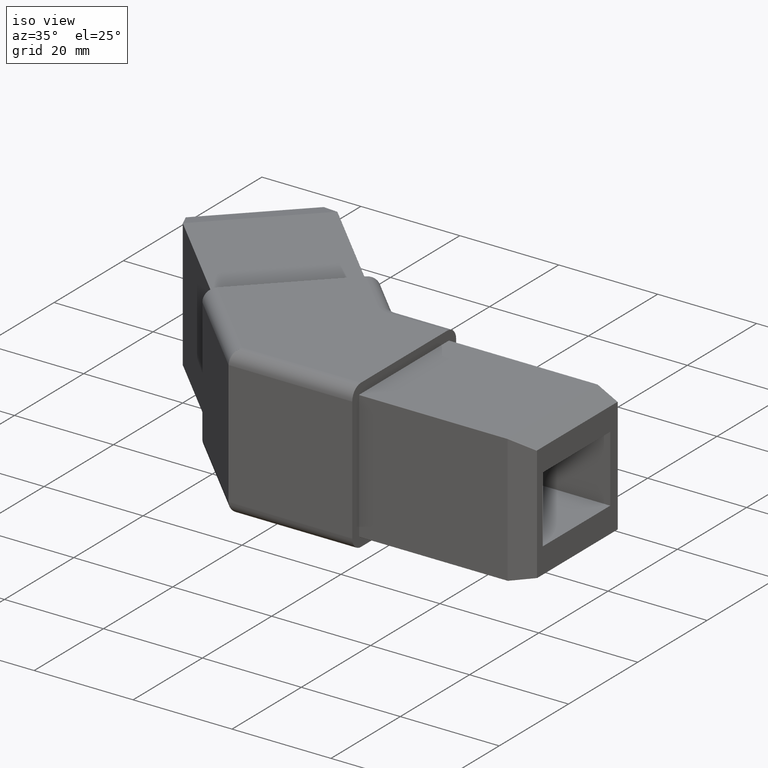
[diagram: clean part render]
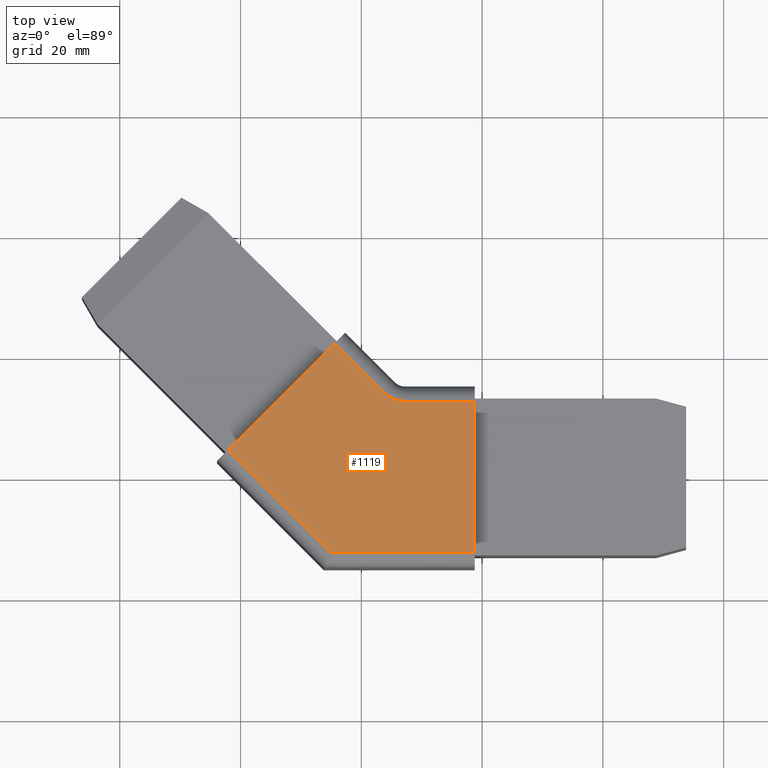
[diagram: tour spotlight — one face highlighted and labeled with its STEP entity id]
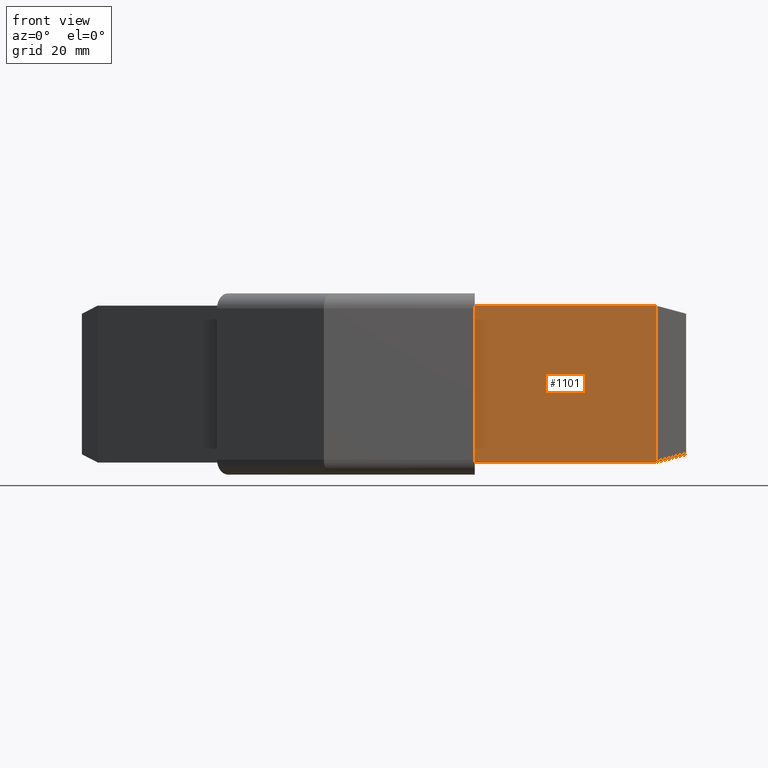
[diagram: tour spotlight — one face highlighted and labeled with its STEP entity id]
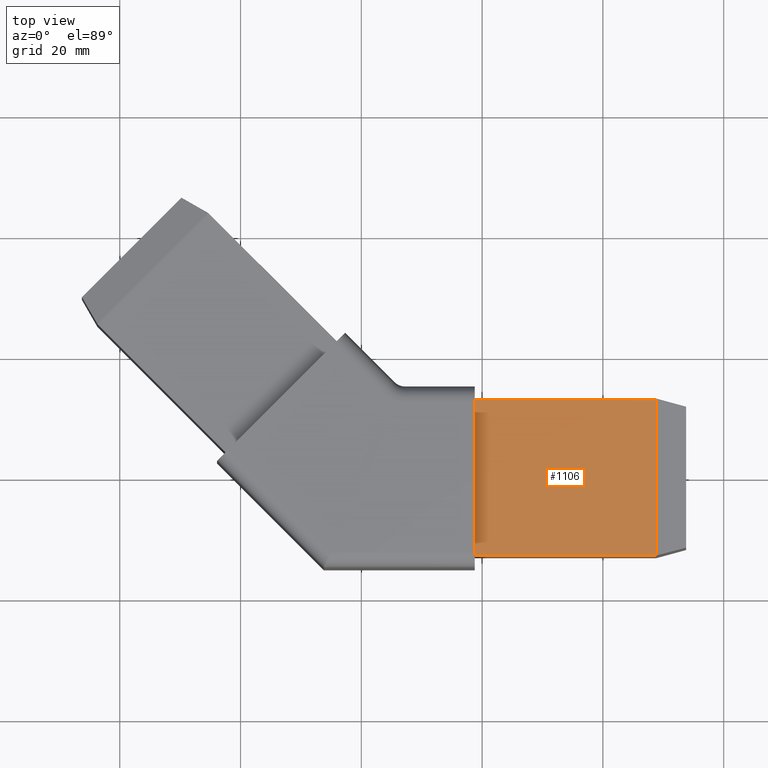
[diagram: tour spotlight — one face highlighted and labeled with its STEP entity id]
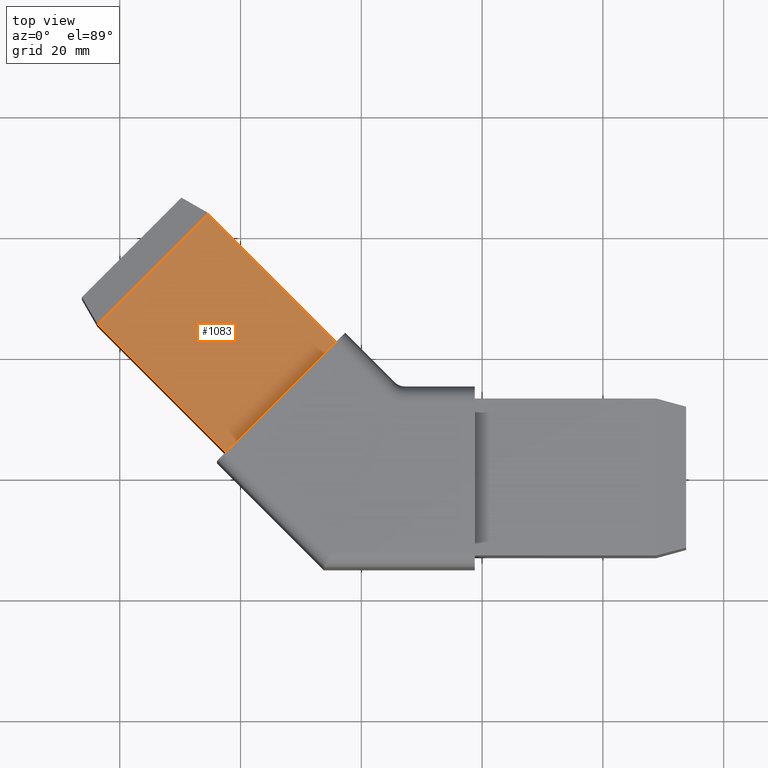
[diagram: tour spotlight — one face highlighted and labeled with its STEP entity id]
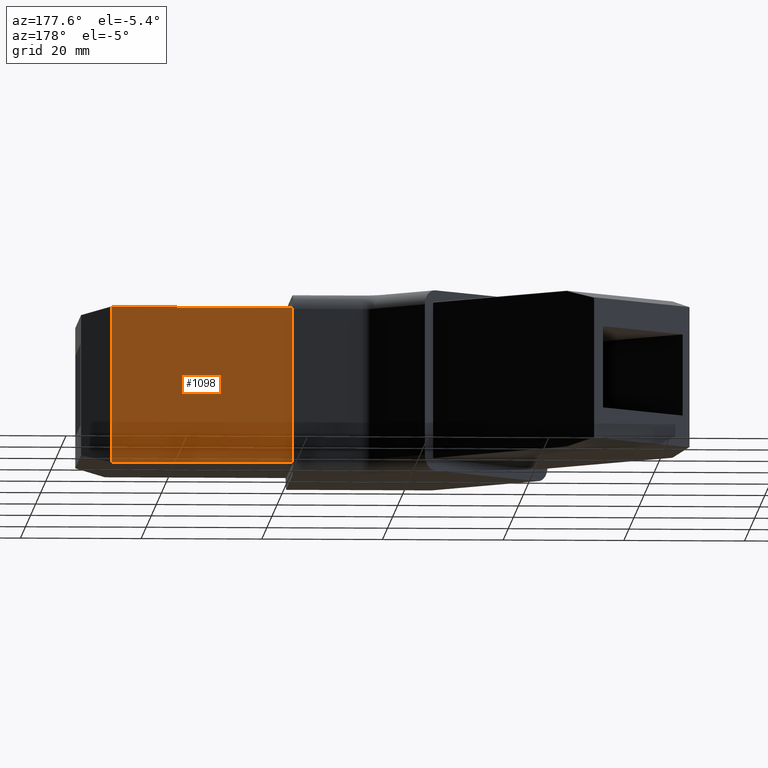
[diagram: tour spotlight — one face highlighted and labeled with its STEP entity id]
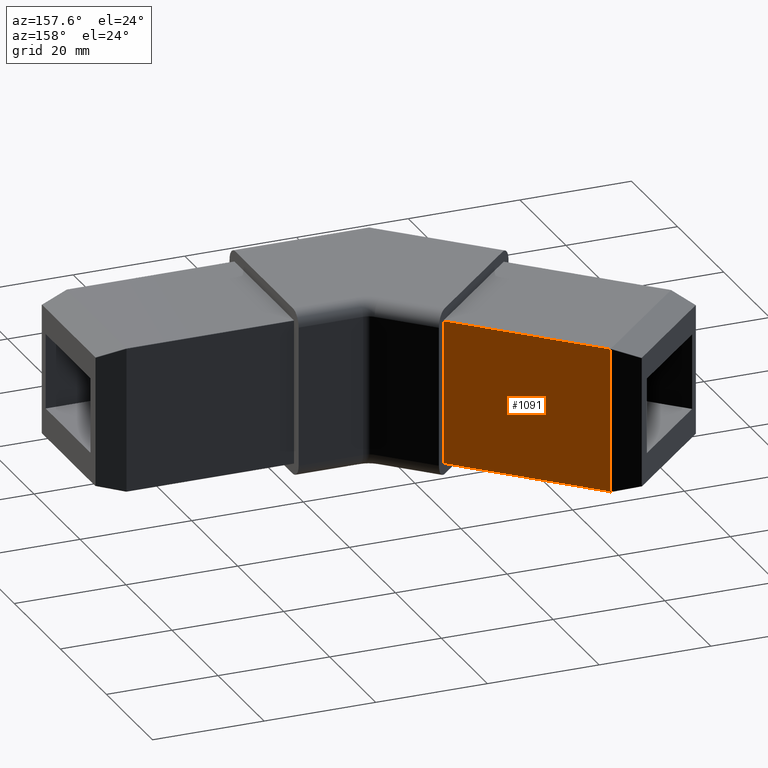
[diagram: tour spotlight — one face highlighted and labeled with its STEP entity id]
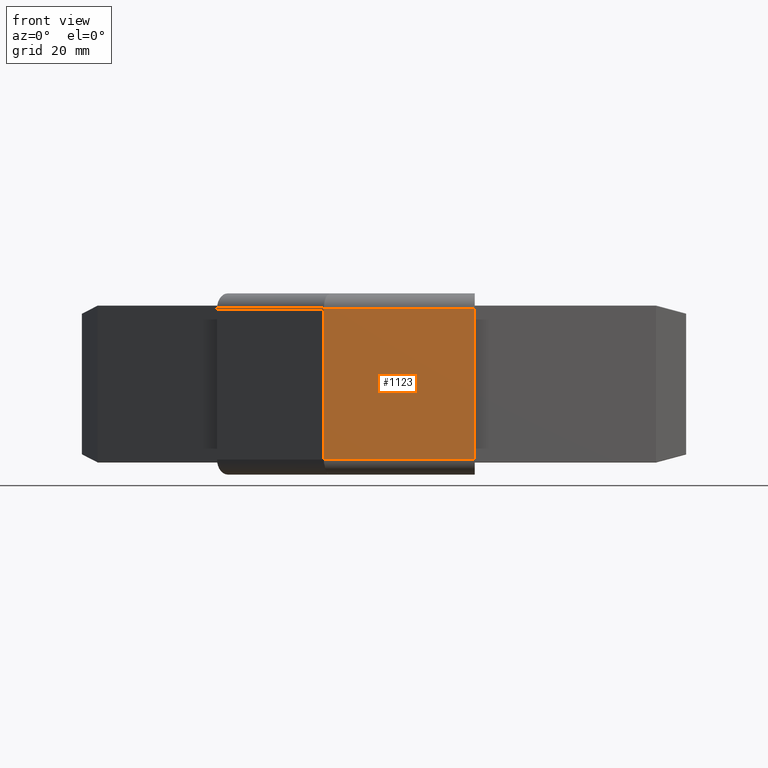
[diagram: tour spotlight — one face highlighted and labeled with its STEP entity id]
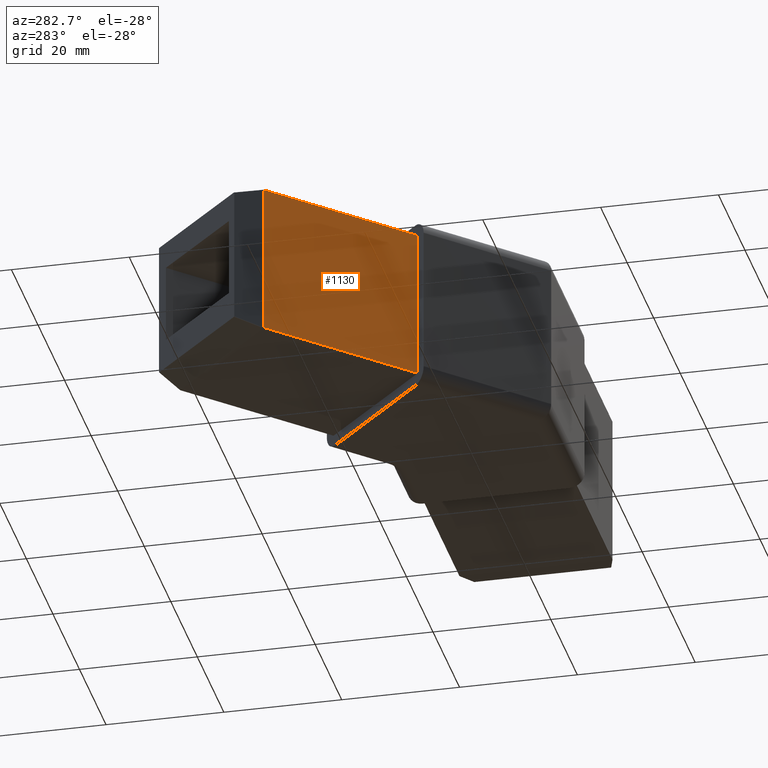
[diagram: tour spotlight — one face highlighted and labeled with its STEP entity id]
A machine part: a face-by-face anatomy tour. The part has 62 B-rep faces; the first image is the clean iso view, then the 8 largest visible faces are spotlighted one at a time (largest first), each with its STEP entity span.

Face 1 — top view, entity #1119. In plain terms, the highlighted planar face has unit normal (0, 0, 1).
Definition (entity closure, byte-faithful):
#39=CIRCLE('',#1244,5.);
#157=FACE_OUTER_BOUND('',#221,.T.);
#221=EDGE_LOOP('',(#949,#950,#951,#952,#953,#954,#955));
#315=LINE('',#1883,#417);
#318=LINE('',#1890,#420);
#322=LINE('',#1901,#424);
#323=LINE('',#1903,#425);
#324=LINE('',#1905,#426);
#325=LINE('',#1906,#427);
#417=VECTOR('',#1541,10.);
#420=VECTOR('',#1548,10.);
#424=VECTOR('',#1560,10.);
#425=VECTOR('',#1561,10.);
#426=VECTOR('',#1562,10.);
#427=VECTOR('',#1563,10.);
#526=VERTEX_POINT('',#1869);
#528=VERTEX_POINT('',#1873);
#530=VERTEX_POINT('',#1881);
#531=VERTEX_POINT('',#1886);
#535=VERTEX_POINT('',#1900);
#536=VERTEX_POINT('',#1902);
#537=VERTEX_POINT('',#1904);
#671=EDGE_CURVE('',#528,#526,#39,.T.);
#675=EDGE_CURVE('',#530,#528,#315,.T.);
#679=EDGE_CURVE('',#526,#531,#318,.T.);
#684=EDGE_CURVE('',#530,#535,#322,.T.);
#685=EDGE_CURVE('',#536,#535,#323,.T.);
#686=EDGE_CURVE('',#537,#536,#324,.T.);
#687=EDGE_CURVE('',#537,#531,#325,.T.);
#949=ORIENTED_EDGE('',*,*,#679,.F.);
#950=ORIENTED_EDGE('',*,*,#671,.F.);
#951=ORIENTED_EDGE('',*,*,#675,.F.);
#952=ORIENTED_EDGE('',*,*,#684,.T.);
#953=ORIENTED_EDGE('',*,*,#685,.F.);
#954=ORIENTED_EDGE('',*,*,#686,.F.);
#955=ORIENTED_EDGE('',*,*,#687,.T.);
#1064=PLANE('',#1253);
#1119=ADVANCED_FACE('',(#157),#1064,.T.);
#1244=AXIS2_PLACEMENT_3D('',#1875,#1531,#1532);
#1253=AXIS2_PLACEMENT_3D('',#1899,#1558,#1559);
#1531=DIRECTION('center_axis',(0.,0.,1.));
#1532=DIRECTION('ref_axis',(-0.38268343236509,-0.923879532511287,0.));
#1541=DIRECTION('',(0.707106781186547,-0.707106781186548,0.));
#1548=DIRECTION('',(1.,0.,0.));
#1558=DIRECTION('center_axis',(0.,0.,1.));
#1559=DIRECTION('ref_axis',(1.,0.,0.));
#1560=DIRECTION('',(-0.707106781186548,-0.707106781186547,0.));
#1561=DIRECTION('',(-0.707106781186547,0.707106781186548,0.));
#1562=DIRECTION('',(-1.,0.,0.));
#1563=DIRECTION('',(0.,1.,0.));
#1869=CARTESIAN_POINT('',(7.24873734152918,12.5,30.));
#1873=CARTESIAN_POINT('',(3.71320343559644,13.9644660940673,30.));
#1875=CARTESIAN_POINT('Origin',(7.24873734152918,17.5,30.));
#1881=CARTESIAN_POINT('',(-4.44558033331981,22.1232498629835,30.));
#1883=CARTESIAN_POINT('',(6.31377790588268,11.363891623781,30.));
#1886=CARTESIAN_POINT('',(18.787,12.5,30.));
#1890=CARTESIAN_POINT('',(9.85786793789091,12.5,30.));
#1899=CARTESIAN_POINT('Origin',(0.928735875781815,2.24216674717492,30.));
#1900=CARTESIAN_POINT('',(-22.1232498629835,4.44558033331983,30.));
#1901=CARTESIAN_POINT('',(-23.8910168159499,2.67781338035347,30.));
#1902=CARTESIAN_POINT('',(-5.17766952966371,-12.5,30.));
#1903=CARTESIAN_POINT('',(-15.809400031756,-1.86826949790773,30.));
#1904=CARTESIAN_POINT('',(18.787,-12.5,30.));
#1905=CARTESIAN_POINT('',(-2.62152310178866,-12.5,30.));
#1906=CARTESIAN_POINT('',(18.787,15.,30.));

Face 2 — front view, entity #1101. In plain terms, the highlighted planar face has unit normal (0, -1, 0).
Definition (entity closure, byte-faithful):
#139=FACE_OUTER_BOUND('',#203,.T.);
#203=EDGE_LOOP('',(#865,#866,#867,#868));
#296=LINE('',#1810,#398);
#299=LINE('',#1816,#401);
#300=LINE('',#1818,#402);
#301=LINE('',#1819,#403);
#398=VECTOR('',#1456,10.);
#401=VECTOR('',#1463,10.);
#402=VECTOR('',#1464,10.);
#403=VECTOR('',#1465,10.);
#504=VERTEX_POINT('',#1799);
#509=VERTEX_POINT('',#1808);
#510=VERTEX_POINT('',#1815);
#511=VERTEX_POINT('',#1817);
#639=EDGE_CURVE('',#509,#504,#296,.T.);
#642=EDGE_CURVE('',#510,#509,#299,.T.);
#643=EDGE_CURVE('',#511,#510,#300,.T.);
#644=EDGE_CURVE('',#504,#511,#301,.T.);
#865=ORIENTED_EDGE('',*,*,#639,.F.);
#866=ORIENTED_EDGE('',*,*,#642,.F.);
#867=ORIENTED_EDGE('',*,*,#643,.F.);
#868=ORIENTED_EDGE('',*,*,#644,.F.);
#1057=PLANE('',#1216);
#1101=ADVANCED_FACE('',(#139),#1057,.T.);
#1216=AXIS2_PLACEMENT_3D('',#1814,#1461,#1462);
#1456=DIRECTION('',(-1.,0.,0.));
#1461=DIRECTION('center_axis',(0.,-1.,0.));
#1462=DIRECTION('ref_axis',(0.,0.,-1.));
#1463=DIRECTION('',(0.,0.,-1.));
#1464=DIRECTION('',(1.,0.,0.));
#1465=DIRECTION('',(0.,0.,1.));
#1799=CARTESIAN_POINT('',(18.787,-13.,2.1));
#1808=CARTESIAN_POINT('',(48.787,-13.,2.1));
#1810=CARTESIAN_POINT('',(18.787,-13.,2.1));
#1814=CARTESIAN_POINT('Origin',(18.787,-13.,28.));
#1815=CARTESIAN_POINT('',(48.787,-13.,27.9));
#1816=CARTESIAN_POINT('',(48.787,-13.,21.5));
#1817=CARTESIAN_POINT('',(18.787,-13.,27.9));
#1818=CARTESIAN_POINT('',(18.787,-13.,27.9));
#1819=CARTESIAN_POINT('',(18.787,-13.,14.));

Face 3 — top view, entity #1106. In plain terms, the highlighted planar face has unit normal (0, 0, 1).
Definition (entity closure, byte-faithful):
#144=FACE_OUTER_BOUND('',#208,.T.);
#208=EDGE_LOOP('',(#891,#892,#893,#894));
#304=LINE('',#1832,#406);
#305=LINE('',#1836,#407);
#307=LINE('',#1842,#409);
#308=LINE('',#1843,#410);
#406=VECTOR('',#1480,10.);
#407=VECTOR('',#1485,10.);
#409=VECTOR('',#1491,10.);
#410=VECTOR('',#1492,10.);
#514=VERTEX_POINT('',#1829);
#515=VERTEX_POINT('',#1831);
#516=VERTEX_POINT('',#1835);
#518=VERTEX_POINT('',#1841);
#650=EDGE_CURVE('',#514,#515,#304,.T.);
#652=EDGE_CURVE('',#515,#516,#305,.T.);
#655=EDGE_CURVE('',#518,#514,#307,.T.);
#656=EDGE_CURVE('',#516,#518,#308,.T.);
#891=ORIENTED_EDGE('',*,*,#650,.F.);
#892=ORIENTED_EDGE('',*,*,#655,.F.);
#893=ORIENTED_EDGE('',*,*,#656,.F.);
#894=ORIENTED_EDGE('',*,*,#652,.F.);
#1060=PLANE('',#1226);
#1106=ADVANCED_FACE('',(#144),#1060,.T.);
#1226=AXIS2_PLACEMENT_3D('',#1840,#1489,#1490);
#1480=DIRECTION('',(1.,0.,0.));
#1485=DIRECTION('',(0.,-1.,0.));
#1489=DIRECTION('center_axis',(0.,0.,1.));
#1490=DIRECTION('ref_axis',(0.,-1.,0.));
#1491=DIRECTION('',(0.,1.,0.));
#1492=DIRECTION('',(-1.,0.,0.));
#1829=CARTESIAN_POINT('',(18.787,12.9,28.));
#1831=CARTESIAN_POINT('',(48.787,12.9,28.));
#1832=CARTESIAN_POINT('',(18.787,12.9,28.));
#1835=CARTESIAN_POINT('',(48.787,-12.9,28.));
#1836=CARTESIAN_POINT('',(48.787,6.5,28.));
#1840=CARTESIAN_POINT('Origin',(18.787,13.,28.));
#1841=CARTESIAN_POINT('',(18.787,-12.9,28.));
#1842=CARTESIAN_POINT('',(18.787,-0.999999999999999,28.));
#1843=CARTESIAN_POINT('',(18.787,-12.9,28.));

Face 4 — top view, entity #1083. In plain terms, the highlighted planar face has unit normal (-0, -0, 1).
Definition (entity closure, byte-faithful):
#121=FACE_OUTER_BOUND('',#184,.T.);
#184=EDGE_LOOP('',(#769,#770,#771,#772));
#259=LINE('',#1676,#361);
#265=LINE('',#1697,#367);
#267=LINE('',#1703,#369);
#268=LINE('',#1704,#370);
#361=VECTOR('',#1321,10.);
#367=VECTOR('',#1341,10.);
#369=VECTOR('',#1347,10.);
#370=VECTOR('',#1348,10.);
#460=VERTEX_POINT('',#1673);
#461=VERTEX_POINT('',#1675);
#469=VERTEX_POINT('',#1696);
#471=VERTEX_POINT('',#1702);
#572=EDGE_CURVE('',#460,#461,#259,.T.);
#583=EDGE_CURVE('',#461,#469,#265,.T.);
#586=EDGE_CURVE('',#471,#460,#267,.T.);
#587=EDGE_CURVE('',#469,#471,#268,.T.);
#769=ORIENTED_EDGE('',*,*,#572,.F.);
#770=ORIENTED_EDGE('',*,*,#586,.F.);
#771=ORIENTED_EDGE('',*,*,#587,.F.);
#772=ORIENTED_EDGE('',*,*,#583,.F.);
#1049=PLANE('',#1174);
#1083=ADVANCED_FACE('',(#121),#1049,.T.);
#1174=AXIS2_PLACEMENT_3D('',#1701,#1345,#1346);
#1321=DIRECTION('',(-0.707106781186547,0.707106781186548,0.));
#1341=DIRECTION('',(0.707106781186548,0.707106781186547,1.04672830578918E-16));
#1345=DIRECTION('center_axis',(-7.4014868308344E-17,-7.40148683083438E-17,
1.));
#1346=DIRECTION('ref_axis',(0.707106781186548,0.707106781186547,1.04672830578918E-16));
#1347=DIRECTION('',(-0.707106781186548,-0.707106781186547,-1.04672830578918E-16));
#1348=DIRECTION('',(0.707106781186547,-0.707106781186548,0.));
#1673=CARTESIAN_POINT('',(-22.4060925754581,4.16273762084522,28.));
#1675=CARTESIAN_POINT('',(-43.6192960110545,25.3759410564417,28.));
#1676=CARTESIAN_POINT('',(-22.4060925754581,4.16273762084522,28.));
#1696=CARTESIAN_POINT('',(-25.3759410564416,43.6192960110546,28.));
#1697=CARTESIAN_POINT('',(-39.0938126114606,29.9014244560356,28.));
#1701=CARTESIAN_POINT('Origin',(-22.4768032535768,4.09202694272656,28.));
#1702=CARTESIAN_POINT('',(-4.16273762084519,22.4060925754581,28.));
#1703=CARTESIAN_POINT('',(-12.5773083169651,13.9915218793382,28.));
#1704=CARTESIAN_POINT('',(-4.16273762084519,22.4060925754581,28.));

Face 5 — auxiliary view, entity #1098. In plain terms, the highlighted planar face has unit normal (0, 1, 0).
Definition (entity closure, byte-faithful):
#136=FACE_OUTER_BOUND('',#200,.T.);
#200=EDGE_LOOP('',(#851,#852,#853,#854));
#285=LINE('',#1769,#387);
#291=LINE('',#1790,#393);
#293=LINE('',#1796,#395);
#294=LINE('',#1797,#396);
#387=VECTOR('',#1417,10.);
#393=VECTOR('',#1437,10.);
#395=VECTOR('',#1443,10.);
#396=VECTOR('',#1444,10.);
#492=VERTEX_POINT('',#1766);
#493=VERTEX_POINT('',#1768);
#501=VERTEX_POINT('',#1789);
#503=VERTEX_POINT('',#1795);
#618=EDGE_CURVE('',#492,#493,#285,.T.);
#629=EDGE_CURVE('',#493,#501,#291,.T.);
#632=EDGE_CURVE('',#503,#492,#293,.T.);
#633=EDGE_CURVE('',#501,#503,#294,.T.);
#851=ORIENTED_EDGE('',*,*,#618,.F.);
#852=ORIENTED_EDGE('',*,*,#632,.F.);
#853=ORIENTED_EDGE('',*,*,#633,.F.);
#854=ORIENTED_EDGE('',*,*,#629,.F.);
#1056=PLANE('',#1209);
#1098=ADVANCED_FACE('',(#136),#1056,.T.);
#1209=AXIS2_PLACEMENT_3D('',#1794,#1441,#1442);
#1417=DIRECTION('',(1.,0.,0.));
#1437=DIRECTION('',(0.,0.,1.));
#1441=DIRECTION('center_axis',(0.,1.,0.));
#1442=DIRECTION('ref_axis',(0.,0.,1.));
#1443=DIRECTION('',(0.,0.,-1.));
#1444=DIRECTION('',(-1.,0.,0.));
#1766=CARTESIAN_POINT('',(18.787,13.,2.1));
#1768=CARTESIAN_POINT('',(48.787,13.,2.1));
#1769=CARTESIAN_POINT('',(18.787,13.,2.1));
#1789=CARTESIAN_POINT('',(48.787,13.,27.9));
#1790=CARTESIAN_POINT('',(48.787,13.,8.5));
#1794=CARTESIAN_POINT('Origin',(18.787,13.,2.));
#1795=CARTESIAN_POINT('',(18.787,13.,27.9));
#1796=CARTESIAN_POINT('',(18.787,13.,0.999999999999999));
#1797=CARTESIAN_POINT('',(18.787,13.,27.9));

Face 6 — auxiliary view, entity #1091. In plain terms, the highlighted planar face has unit normal (0.7071, 0.7071, 0).
Definition (entity closure, byte-faithful):
#129=FACE_OUTER_BOUND('',#192,.T.);
#192=EDGE_LOOP('',(#809,#810,#811,#812));
#278=LINE('',#1739,#380);
#279=LINE('',#1743,#381);
#281=LINE('',#1749,#383);
#282=LINE('',#1750,#384);
#380=VECTOR('',#1384,10.);
#381=VECTOR('',#1389,10.);
#383=VECTOR('',#1395,10.);
#384=VECTOR('',#1396,10.);
#482=VERTEX_POINT('',#1736);
#483=VERTEX_POINT('',#1738);
#484=VERTEX_POINT('',#1742);
#486=VERTEX_POINT('',#1748);
#604=EDGE_CURVE('',#482,#483,#278,.T.);
#606=EDGE_CURVE('',#483,#484,#279,.T.);
#609=EDGE_CURVE('',#486,#482,#281,.T.);
#610=EDGE_CURVE('',#484,#486,#282,.T.);
#809=ORIENTED_EDGE('',*,*,#604,.F.);
#810=ORIENTED_EDGE('',*,*,#609,.F.);
#811=ORIENTED_EDGE('',*,*,#610,.F.);
#812=ORIENTED_EDGE('',*,*,#606,.F.);
#1053=PLANE('',#1191);
#1091=ADVANCED_FACE('',(#129),#1053,.T.);
#1191=AXIS2_PLACEMENT_3D('',#1747,#1393,#1394);
#1384=DIRECTION('',(-0.707106781186547,0.707106781186548,0.));
#1389=DIRECTION('',(7.4014868308344E-17,7.40148683083438E-17,-1.));
#1393=DIRECTION('center_axis',(0.707106781186548,0.707106781186547,1.04672830578918E-16));
#1394=DIRECTION('ref_axis',(7.4014868308344E-17,7.40148683083438E-17,-1.));
#1395=DIRECTION('',(-7.4014868308344E-17,-7.40148683083438E-17,1.));
#1396=DIRECTION('',(0.707106781186547,-0.707106781186548,0.));
#1736=CARTESIAN_POINT('',(-4.09202694272654,22.4768032535768,27.9));
#1738=CARTESIAN_POINT('',(-25.3052303783229,43.6900066891732,27.9));
#1739=CARTESIAN_POINT('',(-4.09202694272654,22.4768032535768,27.9));
#1742=CARTESIAN_POINT('',(-25.3052303783229,43.6900066891732,2.10000000000001));
#1743=CARTESIAN_POINT('',(-25.3052303783229,43.6900066891732,21.5));
#1747=CARTESIAN_POINT('Origin',(-4.09202694272654,22.4768032535768,28.));
#1748=CARTESIAN_POINT('',(-4.09202694272654,22.4768032535768,2.10000000000001));
#1749=CARTESIAN_POINT('',(-4.09202694272654,22.4768032535768,14.));
#1750=CARTESIAN_POINT('',(-4.09202694272654,22.4768032535768,2.10000000000001));

Face 7 — front view, entity #1123. In plain terms, the highlighted planar face has unit normal (0, -1, 0).
Definition (entity closure, byte-faithful):
#161=FACE_OUTER_BOUND('',#225,.T.);
#225=EDGE_LOOP('',(#967,#968,#969,#970));
#327=LINE('',#1938,#429);
#328=LINE('',#1942,#430);
#329=LINE('',#1944,#431);
#330=LINE('',#1945,#432);
#429=VECTOR('',#1577,10.);
#430=VECTOR('',#1582,10.);
#431=VECTOR('',#1583,10.);
#432=VECTOR('',#1584,10.);
#538=VERTEX_POINT('',#1927);
#541=VERTEX_POINT('',#1937);
#542=VERTEX_POINT('',#1941);
#543=VERTEX_POINT('',#1943);
#693=EDGE_CURVE('',#538,#541,#327,.T.);
#695=EDGE_CURVE('',#542,#538,#328,.T.);
#696=EDGE_CURVE('',#543,#542,#329,.T.);
#697=EDGE_CURVE('',#543,#541,#330,.T.);
#967=ORIENTED_EDGE('',*,*,#693,.F.);
#968=ORIENTED_EDGE('',*,*,#695,.F.);
#969=ORIENTED_EDGE('',*,*,#696,.F.);
#970=ORIENTED_EDGE('',*,*,#697,.T.);
#1065=PLANE('',#1261);
#1123=ADVANCED_FACE('',(#161),#1065,.T.);
#1261=AXIS2_PLACEMENT_3D('',#1940,#1580,#1581);
#1577=DIRECTION('',(1.,0.,0.));
#1580=DIRECTION('center_axis',(0.,-1.,0.));
#1581=DIRECTION('ref_axis',(1.,0.,0.));
#1582=DIRECTION('',(0.,0.,1.));
#1583=DIRECTION('',(-1.,0.,0.));
#1584=DIRECTION('',(0.,0.,1.));
#1927=CARTESIAN_POINT('',(-6.17178207935913,-15.,27.5));
#1937=CARTESIAN_POINT('',(18.787,-15.,27.5));
#1938=CARTESIAN_POINT('',(-2.62152310178866,-15.,27.5));
#1940=CARTESIAN_POINT('Origin',(-6.17178207935913,-15.,0.));
#1941=CARTESIAN_POINT('',(-6.17178207935913,-15.,2.5));
#1942=CARTESIAN_POINT('',(-6.17178207935913,-15.,0.));
#1943=CARTESIAN_POINT('',(18.787,-15.,2.5));
#1944=CARTESIAN_POINT('',(-2.62152310178866,-15.,2.5));
#1945=CARTESIAN_POINT('',(18.787,-15.,0.));

Face 8 — auxiliary view, entity #1130. In plain terms, the highlighted planar face has unit normal (-0.7071, -0.7071, -0).
Definition (entity closure, byte-faithful):
#168=FACE_OUTER_BOUND('',#233,.T.);
#233=EDGE_LOOP('',(#1006,#1007,#1008,#1009));
#260=LINE('',#1680,#362);
#269=LINE('',#1710,#371);
#309=LINE('',#1849,#411);
#336=LINE('',#1959,#438);
#362=VECTOR('',#1326,10.);
#371=VECTOR('',#1353,10.);
#411=VECTOR('',#1503,10.);
#438=VECTOR('',#1600,10.);
#459=VERTEX_POINT('',#1672);
#462=VERTEX_POINT('',#1678);
#473=VERTEX_POINT('',#1707);
#474=VERTEX_POINT('',#1709);
#575=EDGE_CURVE('',#462,#459,#260,.T.);
#589=EDGE_CURVE('',#473,#474,#269,.T.);
#659=EDGE_CURVE('',#474,#462,#309,.T.);
#705=EDGE_CURVE('',#459,#473,#336,.T.);
#1006=ORIENTED_EDGE('',*,*,#575,.F.);
#1007=ORIENTED_EDGE('',*,*,#659,.F.);
#1008=ORIENTED_EDGE('',*,*,#589,.F.);
#1009=ORIENTED_EDGE('',*,*,#705,.F.);
#1068=PLANE('',#1272);
#1130=ADVANCED_FACE('',(#168),#1068,.T.);
#1272=AXIS2_PLACEMENT_3D('',#1989,#1613,#1614);
#1326=DIRECTION('',(0.707106781186547,-0.707106781186548,0.));
#1353=DIRECTION('',(-0.707106781186547,0.707106781186548,0.));
#1503=DIRECTION('',(-1.19305996924222E-16,-1.19305996924222E-16,1.));
#1600=DIRECTION('',(1.19305996924222E-16,1.19305996924222E-16,-1.));
#1613=DIRECTION('center_axis',(-0.707106781186548,-0.707106781186547,-1.68724158922678E-16));
#1614=DIRECTION('ref_axis',(-1.19305996924222E-16,-1.19305996924222E-16,
1.));
#1672=CARTESIAN_POINT('',(-22.4768032535768,4.09202694272657,27.9));
#1678=CARTESIAN_POINT('',(-43.6900066891732,25.305230378323,27.9));
#1680=CARTESIAN_POINT('',(-22.4768032535768,4.09202694272657,27.9));
#1707=CARTESIAN_POINT('',(-22.4768032535768,4.09202694272657,2.1));
#1709=CARTESIAN_POINT('',(-43.6900066891732,25.305230378323,2.1));
#1710=CARTESIAN_POINT('',(-22.4768032535768,4.09202694272657,2.1));
#1849=CARTESIAN_POINT('',(-43.6900066891732,25.305230378323,8.5));
#1959=CARTESIAN_POINT('',(-22.4768032535768,4.09202694272657,0.999999999999999));
#1989=CARTESIAN_POINT('Origin',(-22.4768032535768,4.09202694272657,2.));